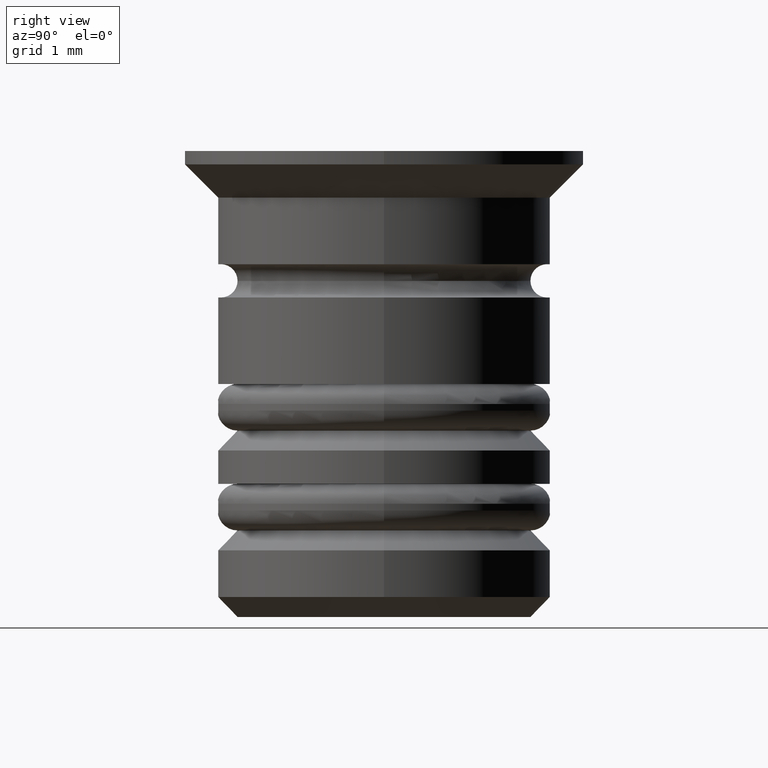
[diagram: clean part render]
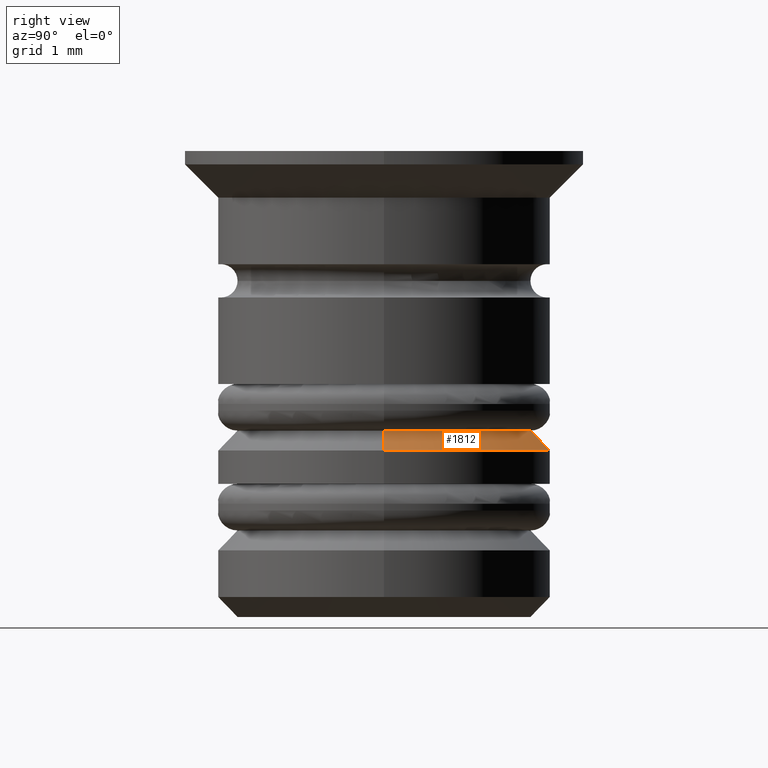
[diagram: same view with one face highlighted and labeled with its STEP entity id]
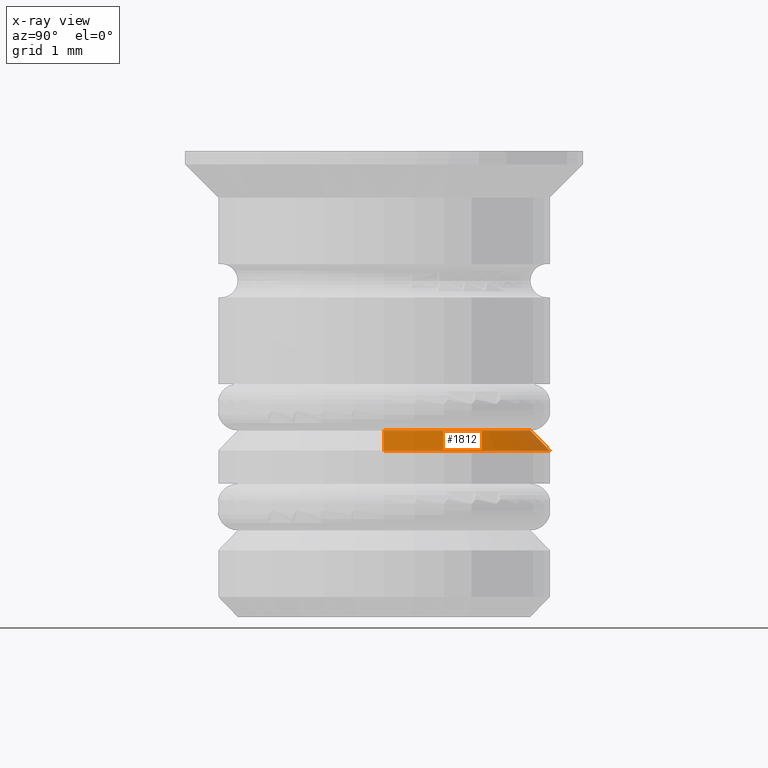
[diagram: x-ray of the same camera — body ghosted, the highlighted face saturated]
A machine part, right view. The second image highlights one B-rep face of the part: STEP entity #1812.
The next image is the same camera in x-ray: the body ghosted, the highlighted face saturated — about 0% of this face is hidden behind the body in this view.
In plain terms, the highlighted conical surface has half-angle 45 deg.
Its self-contained STEP definition (entity closure, byte-faithful):
#26 = DIRECTION ( 'NONE',  ( -0.000000000000000000, -0.000000000000000000, 1.000000000000000000 ) ) ;
#37 = AXIS2_PLACEMENT_3D ( 'NONE', #1414, #26, #262 ) ;
#160 = VERTEX_POINT ( 'NONE', #354 ) ;
#213 = EDGE_CURVE ( 'NONE', #321, #432, #825, .T. ) ;
#220 = EDGE_CURVE ( 'NONE', #321, #160, #1243, .T. ) ;
#228 = CONICAL_SURFACE ( 'NONE', #1709, 1.999999999999992673, 0.7853981633974530530 ) ;
#262 = DIRECTION ( 'NONE',  ( -1.000000000000000000, 0.000000000000000000, 0.000000000000000000 ) ) ;
#315 = ORIENTED_EDGE ( 'NONE', *, *, #220, .F. ) ;
#321 = VERTEX_POINT ( 'NONE', #860 ) ;
#354 = CARTESIAN_POINT ( 'NONE',  ( -2.200000000000002398, 2.694222958124179965E-16, -4.200000000000010836 ) ) ;
#369 = ORIENTED_EDGE ( 'NONE', *, *, #1192, .F. ) ;
#412 = VERTEX_POINT ( 'NONE', #1293 ) ;
#420 = CARTESIAN_POINT ( 'NONE',  ( 0.000000000000000000, 0.000000000000000000, -4.500000000000007105 ) ) ;
#426 = DIRECTION ( 'NONE',  ( -1.000000000000000000, 0.000000000000000000, 0.000000000000000000 ) ) ;
#432 = VERTEX_POINT ( 'NONE', #1195 ) ;
#465 = DIRECTION ( 'NONE',  ( 0.7071067811865507924, 8.659560562354974766E-17, -0.7071067811865441310 ) ) ;
#532 = CARTESIAN_POINT ( 'NONE',  ( 0.000000000000000000, 0.000000000000000000, -4.000000000000003553 ) ) ;
#726 = DIRECTION ( 'NONE',  ( -1.000000000000000000, 0.000000000000000000, 0.000000000000000000 ) ) ;
#825 = LINE ( 'NONE', #1136, #870 ) ;
#854 = DIRECTION ( 'NONE',  ( 0.000000000000000000, 0.000000000000000000, -1.000000000000000000 ) ) ;
#860 = CARTESIAN_POINT ( 'NONE',  ( 2.200000000000002398, 0.000000000000000000, -4.200000000000010836 ) ) ;
#870 = VECTOR ( 'NONE', #465, 1000.000000000000000 ) ;
#933 = CIRCLE ( 'NONE', #1170, 2.500000000000001332 ) ;
#1012 = DIRECTION ( 'NONE',  ( -0.7071067811865507924, 0.000000000000000000, -0.7071067811865441310 ) ) ;
#1136 = CARTESIAN_POINT ( 'NONE',  ( 1.999999999999992673, 2.449293598294697540E-16, -4.000000000000003553 ) ) ;
#1170 = AXIS2_PLACEMENT_3D ( 'NONE', #420, #854, #726 ) ;
#1192 = EDGE_CURVE ( 'NONE', #412, #432, #933, .T. ) ;
#1195 = CARTESIAN_POINT ( 'NONE',  ( 2.500000000000001332, 0.000000000000000000, -4.500000000000007105 ) ) ;
#1243 = CIRCLE ( 'NONE', #37, 2.200000000000002398 ) ;
#1248 = ORIENTED_EDGE ( 'NONE', *, *, #1597, .F. ) ;
#1293 = CARTESIAN_POINT ( 'NONE',  ( -2.500000000000001332, 3.061616997868385113E-16, -4.500000000000007105 ) ) ;
#1414 = CARTESIAN_POINT ( 'NONE',  ( 0.000000000000000000, 0.000000000000000000, -4.200000000000010836 ) ) ;
#1503 = ORIENTED_EDGE ( 'NONE', *, *, #213, .T. ) ;
#1597 = EDGE_CURVE ( 'NONE', #160, #412, #1725, .T. ) ;
#1690 = EDGE_LOOP ( 'NONE', ( #315, #1503, #369, #1248 ) ) ;
#1693 = DIRECTION ( 'NONE',  ( 0.000000000000000000, 0.000000000000000000, -1.000000000000000000 ) ) ;
#1709 = AXIS2_PLACEMENT_3D ( 'NONE', #532, #1693, #426 ) ;
#1725 = LINE ( 'NONE', #1743, #1788 ) ;
#1743 = CARTESIAN_POINT ( 'NONE',  ( -1.999999999999992673, 0.000000000000000000, -4.000000000000003553 ) ) ;
#1788 = VECTOR ( 'NONE', #1012, 1000.000000000000000 ) ;
#1801 = FACE_OUTER_BOUND ( 'NONE', #1690, .T. ) ;
#1812 = ADVANCED_FACE ( 'NONE', ( #1801 ), #228, .T. ) ;